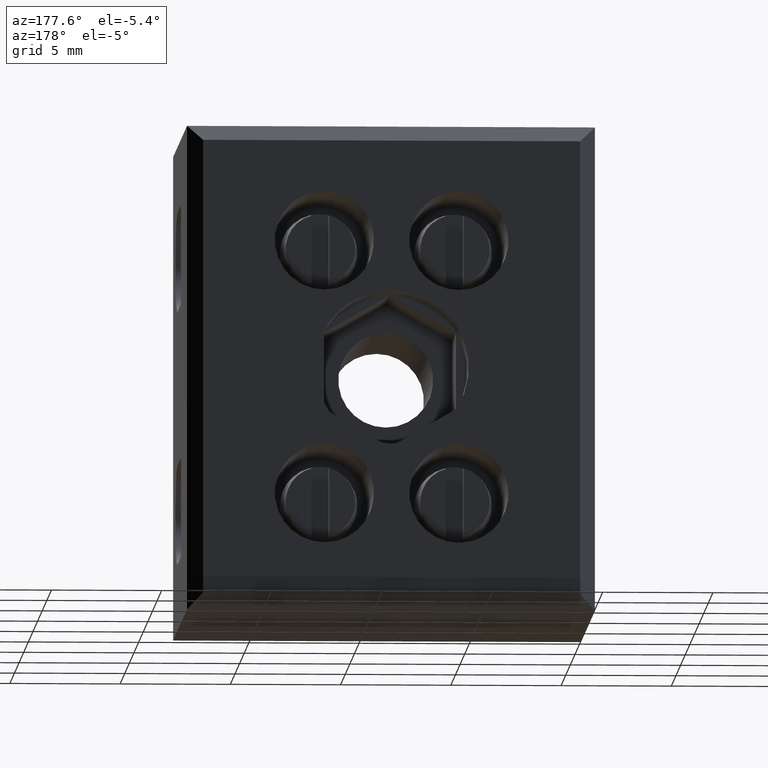
[diagram: clean part render]
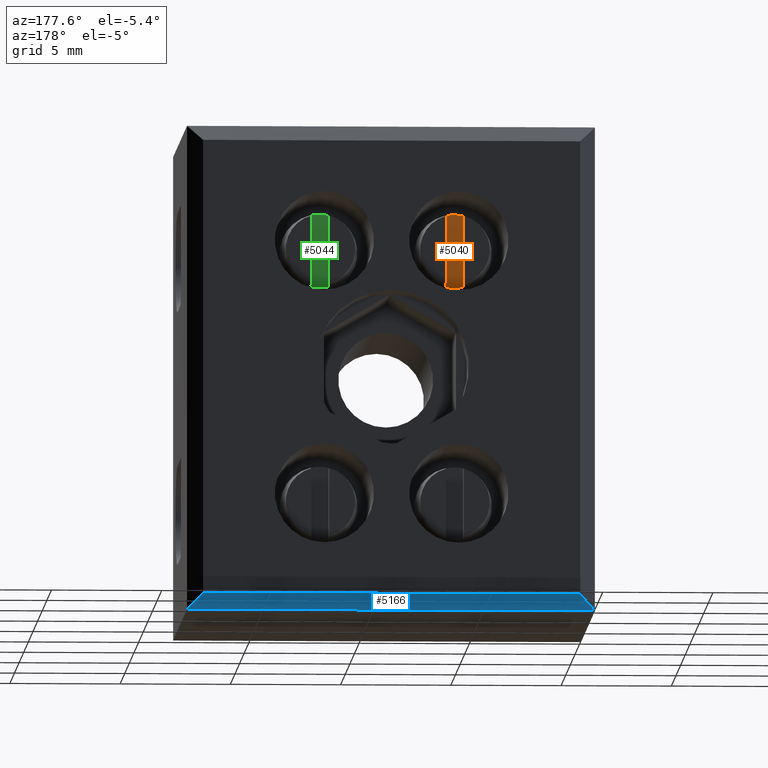
[diagram: same view with three faces highlighted in distinct colors, each labeled with its STEP entity id]
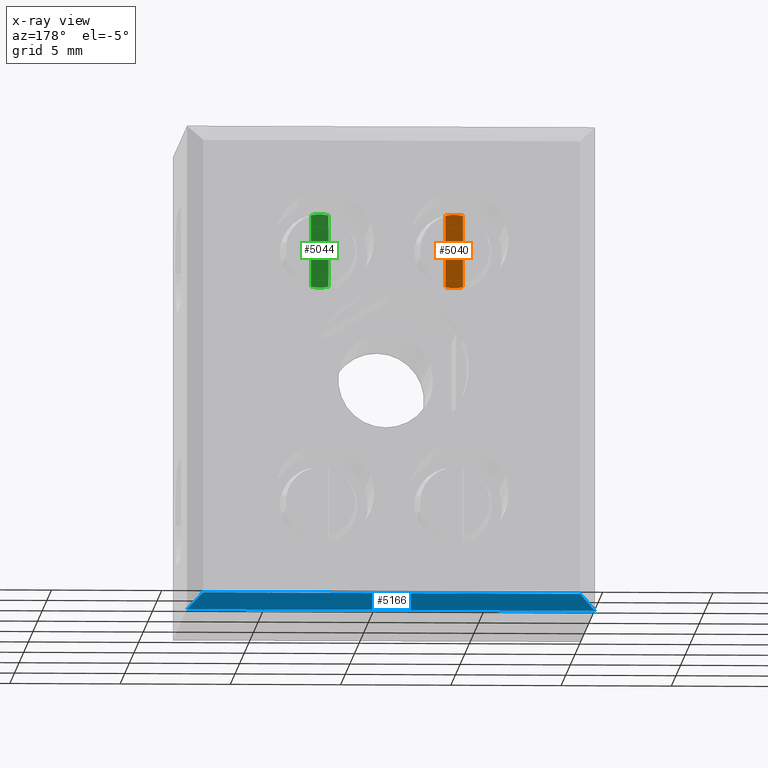
[diagram: x-ray of the same camera — body ghosted, the three highlighted faces saturated]
A machine part, auxiliary view with three faces highlighted in distinct colors.
The next image is the same camera in x-ray (body ghosted, the three faces saturated) — at least one of them is partly hidden behind the body in this view.
Their STEP definitions:

[orange] entity #5040 — the highlighted planar face has unit normal (0, -1, 0).
#56 = VERTEX_POINT ( 'NONE', #290 ) ;
#66 = VERTEX_POINT ( 'NONE', #304 ) ;
#99 = VERTEX_POINT ( 'NONE', #380 ) ;
#111 = VERTEX_POINT ( 'NONE', #339 ) ;
#290 = CARTESIAN_POINT ( 'NONE',  ( 6.354918920126317900, 11.29999999999997600, -3.376352513590013400 ) ) ;
#304 = CARTESIAN_POINT ( 'NONE',  ( 6.354918920126317900, 11.29999999999997600, -6.615831041867730600 ) ) ;
#339 = CARTESIAN_POINT ( 'NONE',  ( 5.954918920126321100, 11.29999999999997600, -3.327692759570132400 ) ) ;
#380 = CARTESIAN_POINT ( 'NONE',  ( 5.954918920126321100, 11.29999999999997600, -6.664490795887611600 ) ) ;
#1147 = VECTOR ( 'NONE', #3201, 1000.000000000000000 ) ;
#1186 = CIRCLE ( 'NONE', #1188, 1.668399018158739400 ) ;
#1188 = AXIS2_PLACEMENT_3D ( 'NONE', #3191, #3187, #3197 ) ;
#1201 = AXIS2_PLACEMENT_3D ( 'NONE', #2981, #3005, #2994 ) ;
#1205 = AXIS2_PLACEMENT_3D ( 'NONE', #2844, #2846, #2823 ) ;
#1240 = CIRCLE ( 'NONE', #1205, 1.668399018158739400 ) ;
#1243 = VECTOR ( 'NONE', #2979, 1000.000000000000000 ) ;
#1275 = ORIENTED_EDGE ( 'NONE', *, *, #2361, .T. ) ;
#1276 = ORIENTED_EDGE ( 'NONE', *, *, #2503, .T. ) ;
#1290 = ORIENTED_EDGE ( 'NONE', *, *, #2492, .T. ) ;
#1306 = ORIENTED_EDGE ( 'NONE', *, *, #2488, .T. ) ;
#1340 = ORIENTED_EDGE ( 'NONE', *, *, #2397, .T. ) ;
#1346 = ORIENTED_EDGE ( 'NONE', *, *, #2522, .T. ) ;
#1632 = EDGE_LOOP ( 'NONE', ( #1306, #1275, #1346, #1340, #1276, #1290 ) ) ;
#2301 = VERTEX_POINT ( 'NONE', #4409 ) ;
#2302 = VERTEX_POINT ( 'NONE', #4369 ) ;
#2361 = EDGE_CURVE ( 'NONE', #111, #56, #3548, .T. ) ;
#2397 = EDGE_CURVE ( 'NONE', #66, #99, #3589, .T. ) ;
#2488 = EDGE_CURVE ( 'NONE', #2301, #111, #1186, .T. ) ;
#2492 = EDGE_CURVE ( 'NONE', #2302, #2301, #3204, .T. ) ;
#2503 = EDGE_CURVE ( 'NONE', #99, #2302, #1240, .T. ) ;
#2522 = EDGE_CURVE ( 'NONE', #56, #66, #2909, .T. ) ;
#2823 = DIRECTION ( 'NONE',  ( 0.0000000000000000000, 0.0000000000000000000, -1.000000000000000000 ) ) ;
#2844 = CARTESIAN_POINT ( 'NONE',  ( 5.954918920126321100, 11.29999999999997600, -4.996091777728872300 ) ) ;
#2846 = DIRECTION ( 'NONE',  ( 0.0000000000000000000, 1.000000000000000000, -0.0000000000000000000 ) ) ;
#2909 = LINE ( 'NONE', #2962, #1243 ) ;
#2962 = CARTESIAN_POINT ( 'NONE',  ( 6.354918920126317900, 11.29999999999997600, -6.880180367495419200 ) ) ;
#2968 = PLANE ( 'NONE',  #1201 ) ;
#2975 = FACE_OUTER_BOUND ( 'NONE', #1632, .T. ) ;
#2979 = DIRECTION ( 'NONE',  ( -1.150903602276833000E-016, -0.0000000000000000000, -1.000000000000000000 ) ) ;
#2981 = CARTESIAN_POINT ( 'NONE',  ( 5.554918920126323400, 11.29999999999997600, -3.112003187962324900 ) ) ;
#2994 = DIRECTION ( 'NONE',  ( 0.0000000000000000000, -0.0000000000000000000, -1.000000000000000000 ) ) ;
#3005 = DIRECTION ( 'NONE',  ( 0.0000000000000000000, -1.000000000000000000, 0.0000000000000000000 ) ) ;
#3187 = DIRECTION ( 'NONE',  ( 0.0000000000000000000, 1.000000000000000000, -0.0000000000000000000 ) ) ;
#3191 = CARTESIAN_POINT ( 'NONE',  ( 5.954918920126321100, 11.29999999999997600, -4.996091777728872300 ) ) ;
#3192 = CARTESIAN_POINT ( 'NONE',  ( 5.554918920126323400, 11.29999999999997600, -6.880180367495419200 ) ) ;
#3197 = DIRECTION ( 'NONE',  ( 5.198766773104625700E-015, 0.0000000000000000000, -1.000000000000000000 ) ) ;
#3201 = DIRECTION ( 'NONE',  ( 1.294766552561437500E-016, 0.0000000000000000000, 1.000000000000000000 ) ) ;
#3204 = LINE ( 'NONE', #3192, #1147 ) ;
#3520 = AXIS2_PLACEMENT_3D ( 'NONE', #4419, #4418, #4428 ) ;
#3548 = CIRCLE ( 'NONE', #3520, 1.668399018158739400 ) ;
#3589 = CIRCLE ( 'NONE', #3607, 1.668399018158739400 ) ;
#3607 = AXIS2_PLACEMENT_3D ( 'NONE', #3992, #3958, #3973 ) ;
#3958 = DIRECTION ( 'NONE',  ( 0.0000000000000000000, 1.000000000000000000, -0.0000000000000000000 ) ) ;
#3973 = DIRECTION ( 'NONE',  ( -7.798150159656939300E-015, 0.0000000000000000000, -1.000000000000000000 ) ) ;
#3992 = CARTESIAN_POINT ( 'NONE',  ( 5.954918920126321100, 11.29999999999997600, -4.996091777728872300 ) ) ;
#4369 = CARTESIAN_POINT ( 'NONE',  ( 5.554918920126323400, 11.29999999999997600, -6.615831041867703100 ) ) ;
#4409 = CARTESIAN_POINT ( 'NONE',  ( 5.554918920126323400, 11.29999999999997600, -3.376352513590041000 ) ) ;
#4418 = DIRECTION ( 'NONE',  ( 0.0000000000000000000, 1.000000000000000000, -0.0000000000000000000 ) ) ;
#4419 = CARTESIAN_POINT ( 'NONE',  ( 5.954918920126321100, 11.29999999999997600, -4.996091777728872300 ) ) ;
#4428 = DIRECTION ( 'NONE',  ( 5.198766773104625700E-015, 0.0000000000000000000, -1.000000000000000000 ) ) ;
#5040 = ADVANCED_FACE ( 'NONE', ( #2975 ), #2968, .F. ) ;

[blue] entity #5166 — the highlighted planar face has unit normal (0, -0.7071, 0.7071).
#170 = VERTEX_POINT ( 'NONE', #395 ) ;
#236 = VERTEX_POINT ( 'NONE', #508 ) ;
#237 = VERTEX_POINT ( 'NONE', #468 ) ;
#284 = VERTEX_POINT ( 'NONE', #522 ) ;
#395 = CARTESIAN_POINT ( 'NONE',  ( 0.4549189201263244000, 16.50000000000000000, -21.04609177772887900 ) ) ;
#468 = CARTESIAN_POINT ( 'NONE',  ( 18.25491892012612300, 15.80000000000000100, -21.74609177772887500 ) ) ;
#508 = CARTESIAN_POINT ( 'NONE',  ( -0.2450810798736711100, 15.80000000000000100, -21.74609177772887500 ) ) ;
#522 = CARTESIAN_POINT ( 'NONE',  ( 17.55491892012612700, 16.50000000000000000, -21.04609177772887900 ) ) ;
#1462 = EDGE_LOOP ( 'NONE', ( #2102, #2128, #2132, #2141 ) ) ;
#1583 = EDGE_CURVE ( 'NONE', #284, #170, #4496, .T. ) ;
#1642 = EDGE_CURVE ( 'NONE', #236, #237, #4523, .T. ) ;
#1761 = EDGE_CURVE ( 'NONE', #284, #237, #4083, .T. ) ;
#1843 = EDGE_CURVE ( 'NONE', #236, #170, #4207, .T. ) ;
#2102 = ORIENTED_EDGE ( 'NONE', *, *, #1761, .T. ) ;
#2128 = ORIENTED_EDGE ( 'NONE', *, *, #1642, .F. ) ;
#2132 = ORIENTED_EDGE ( 'NONE', *, *, #1843, .T. ) ;
#2141 = ORIENTED_EDGE ( 'NONE', *, *, #1583, .F. ) ;
#2352 = PLANE ( 'NONE',  #2749 ) ;
#2749 = AXIS2_PLACEMENT_3D ( 'NONE', #3071, #3162, #3178 ) ;
#3071 = CARTESIAN_POINT ( 'NONE',  ( 17.00132410411470100, 16.50000000000000000, -21.04609177772887900 ) ) ;
#3162 = DIRECTION ( 'NONE',  ( 0.0000000000000000000, -0.7071067811865458000, 0.7071067811865492400 ) ) ;
#3178 = DIRECTION ( 'NONE',  ( 0.0000000000000000000, -0.7071067811865492400, -0.7071067811865458000 ) ) ;
#3342 = VECTOR ( 'NONE', #4511, 1000.000000000000000 ) ;
#3353 = VECTOR ( 'NONE', #4490, 1000.000000000000000 ) ;
#3431 = VECTOR ( 'NONE', #4093, 1000.000000000000100 ) ;
#3479 = VECTOR ( 'NONE', #4213, 1000.000000000000200 ) ;
#3849 = FACE_OUTER_BOUND ( 'NONE', #1462, .T. ) ;
#4083 = LINE ( 'NONE', #4092, #3431 ) ;
#4092 = CARTESIAN_POINT ( 'NONE',  ( 10.45491891506074300, 23.60000000506542200, -13.94609177266349300 ) ) ;
#4093 = DIRECTION ( 'NONE',  ( 0.5773502691896248400, -0.5773502691896276200, -0.5773502691896248400 ) ) ;
#4207 = LINE ( 'NONE', #4225, #3479 ) ;
#4213 = DIRECTION ( 'NONE',  ( 0.5773502691896246200, 0.5773502691896277300, 0.5773502691896248400 ) ) ;
#4225 = CARTESIAN_POINT ( 'NONE',  ( 7.554918925191708800, 23.60000000506542200, -13.94609177266349000 ) ) ;
#4473 = CARTESIAN_POINT ( 'NONE',  ( 17.00132410411470100, 16.50000000000000000, -21.04609177772887900 ) ) ;
#4490 = DIRECTION ( 'NONE',  ( -1.000000000000000000, 0.0000000000000000000, 0.0000000000000000000 ) ) ;
#4496 = LINE ( 'NONE', #4473, #3353 ) ;
#4511 = DIRECTION ( 'NONE',  ( 1.000000000000000000, 0.0000000000000000000, 0.0000000000000000000 ) ) ;
#4523 = LINE ( 'NONE', #4535, #3342 ) ;
#4535 = CARTESIAN_POINT ( 'NONE',  ( 0.7585451412754906600, 15.80000000000000100, -21.74609177772887500 ) ) ;
#5166 = ADVANCED_FACE ( 'NONE', ( #3849 ), #2352, .F. ) ;

[green] entity #5044 — the highlighted planar face has unit normal (0, -1, 0).
#49 = VERTEX_POINT ( 'NONE', #298 ) ;
#57 = VERTEX_POINT ( 'NONE', #285 ) ;
#65 = VERTEX_POINT ( 'NONE', #299 ) ;
#92 = VERTEX_POINT ( 'NONE', #320 ) ;
#285 = CARTESIAN_POINT ( 'NONE',  ( 12.05491892012632100, 11.29999999999997600, -3.327692759570132400 ) ) ;
#298 = CARTESIAN_POINT ( 'NONE',  ( 12.45491892012631800, 11.29999999999997600, -3.376352513590013400 ) ) ;
#299 = CARTESIAN_POINT ( 'NONE',  ( 12.05491892012632100, 11.29999999999997600, -6.664490795887611600 ) ) ;
#320 = CARTESIAN_POINT ( 'NONE',  ( 12.45491892012631800, 11.29999999999997600, -6.615831041867730600 ) ) ;
#1014 = CIRCLE ( 'NONE', #1025, 1.668399018158739400 ) ;
#1015 = AXIS2_PLACEMENT_3D ( 'NONE', #2701, #2728, #2705 ) ;
#1022 = CIRCLE ( 'NONE', #1015, 1.668399018158739400 ) ;
#1025 = AXIS2_PLACEMENT_3D ( 'NONE', #2702, #2716, #2717 ) ;
#1126 = VECTOR ( 'NONE', #3855, 1000.000000000000000 ) ;
#1141 = AXIS2_PLACEMENT_3D ( 'NONE', #3209, #3189, #3190 ) ;
#1146 = CIRCLE ( 'NONE', #1141, 1.668399018158739400 ) ;
#1220 = AXIS2_PLACEMENT_3D ( 'NONE', #3038, #3019, #3039 ) ;
#1221 = AXIS2_PLACEMENT_3D ( 'NONE', #2885, #2892, #2886 ) ;
#1238 = CIRCLE ( 'NONE', #1221, 1.668399018158739400 ) ;
#1241 = VECTOR ( 'NONE', #2890, 1000.000000000000000 ) ;
#1291 = ORIENTED_EDGE ( 'NONE', *, *, #2490, .T. ) ;
#1294 = ORIENTED_EDGE ( 'NONE', *, *, #2509, .T. ) ;
#1303 = ORIENTED_EDGE ( 'NONE', *, *, #5091, .T. ) ;
#1344 = ORIENTED_EDGE ( 'NONE', *, *, #2508, .T. ) ;
#1350 = ORIENTED_EDGE ( 'NONE', *, *, #5092, .T. ) ;
#1354 = ORIENTED_EDGE ( 'NONE', *, *, #2483, .T. ) ;
#1588 = EDGE_LOOP ( 'NONE', ( #1291, #1350, #1294, #1303, #1344, #1354 ) ) ;
#2284 = VERTEX_POINT ( 'NONE', #4366 ) ;
#2293 = VERTEX_POINT ( 'NONE', #4407 ) ;
#2483 = EDGE_CURVE ( 'NONE', #2284, #2293, #3830, .T. ) ;
#2490 = EDGE_CURVE ( 'NONE', #2293, #57, #1146, .T. ) ;
#2508 = EDGE_CURVE ( 'NONE', #65, #2284, #1238, .T. ) ;
#2509 = EDGE_CURVE ( 'NONE', #49, #92, #2860, .T. ) ;
#2701 = CARTESIAN_POINT ( 'NONE',  ( 12.05491892012632100, 11.29999999999997600, -4.996091777728872300 ) ) ;
#2702 = CARTESIAN_POINT ( 'NONE',  ( 12.05491892012632100, 11.29999999999997600, -4.996091777728872300 ) ) ;
#2705 = DIRECTION ( 'NONE',  ( 5.198766773104625700E-015, 0.0000000000000000000, -1.000000000000000000 ) ) ;
#2716 = DIRECTION ( 'NONE',  ( 0.0000000000000000000, 1.000000000000000000, -0.0000000000000000000 ) ) ;
#2717 = DIRECTION ( 'NONE',  ( 1.559630031931387900E-014, 0.0000000000000000000, -1.000000000000000000 ) ) ;
#2728 = DIRECTION ( 'NONE',  ( 0.0000000000000000000, 1.000000000000000000, -0.0000000000000000000 ) ) ;
#2860 = LINE ( 'NONE', #2862, #1241 ) ;
#2862 = CARTESIAN_POINT ( 'NONE',  ( 12.45491892012631800, 11.29999999999997600, -6.880180367495419200 ) ) ;
#2885 = CARTESIAN_POINT ( 'NONE',  ( 12.05491892012632100, 11.29999999999997600, -4.996091777728872300 ) ) ;
#2886 = DIRECTION ( 'NONE',  ( 0.0000000000000000000, 0.0000000000000000000, -1.000000000000000000 ) ) ;
#2890 = DIRECTION ( 'NONE',  ( -1.150903602276833000E-016, -0.0000000000000000000, -1.000000000000000000 ) ) ;
#2892 = DIRECTION ( 'NONE',  ( 0.0000000000000000000, 1.000000000000000000, -0.0000000000000000000 ) ) ;
#2991 = FACE_OUTER_BOUND ( 'NONE', #1588, .T. ) ;
#3019 = DIRECTION ( 'NONE',  ( 0.0000000000000000000, -1.000000000000000000, 0.0000000000000000000 ) ) ;
#3032 = PLANE ( 'NONE',  #1220 ) ;
#3038 = CARTESIAN_POINT ( 'NONE',  ( 11.65491892012632200, 11.29999999999997600, -3.112003187962324900 ) ) ;
#3039 = DIRECTION ( 'NONE',  ( 0.0000000000000000000, -0.0000000000000000000, -1.000000000000000000 ) ) ;
#3189 = DIRECTION ( 'NONE',  ( 0.0000000000000000000, 1.000000000000000000, -0.0000000000000000000 ) ) ;
#3190 = DIRECTION ( 'NONE',  ( 0.0000000000000000000, 0.0000000000000000000, -1.000000000000000000 ) ) ;
#3209 = CARTESIAN_POINT ( 'NONE',  ( 12.05491892012632100, 11.29999999999997600, -4.996091777728872300 ) ) ;
#3827 = CARTESIAN_POINT ( 'NONE',  ( 11.65491892012632200, 11.29999999999997600, -6.880180367495419200 ) ) ;
#3830 = LINE ( 'NONE', #3827, #1126 ) ;
#3855 = DIRECTION ( 'NONE',  ( 1.294766552561437500E-016, 0.0000000000000000000, 1.000000000000000000 ) ) ;
#4366 = CARTESIAN_POINT ( 'NONE',  ( 11.65491892012632200, 11.29999999999997600, -6.615831041867703100 ) ) ;
#4407 = CARTESIAN_POINT ( 'NONE',  ( 11.65491892012632200, 11.29999999999997600, -3.376352513590041000 ) ) ;
#5044 = ADVANCED_FACE ( 'NONE', ( #2991 ), #3032, .F. ) ;
#5091 = EDGE_CURVE ( 'NONE', #92, #65, #1014, .T. ) ;
#5092 = EDGE_CURVE ( 'NONE', #57, #49, #1022, .T. ) ;